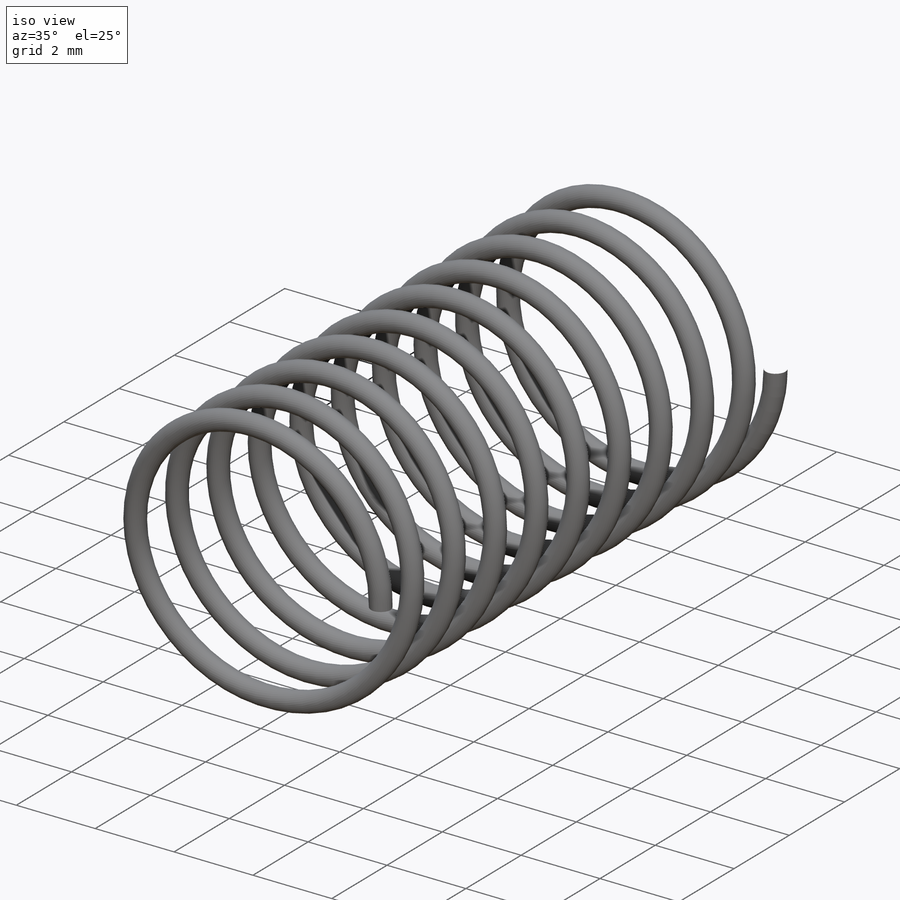
[diagram: iso view]
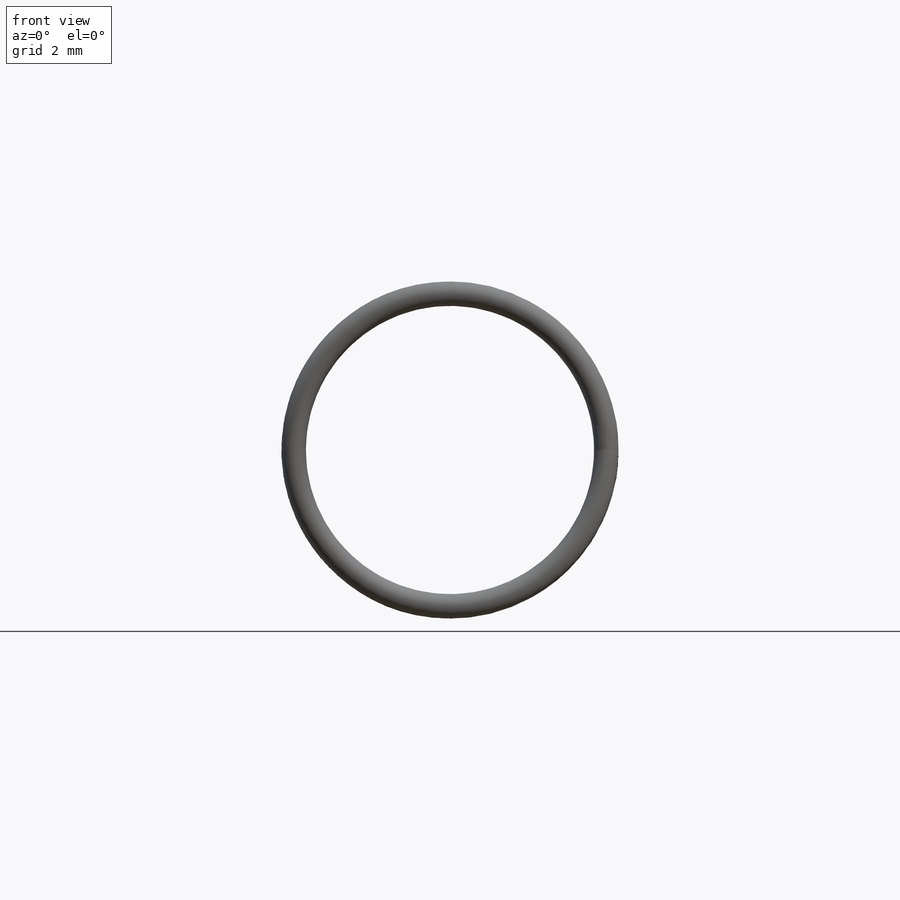
[diagram: front view]
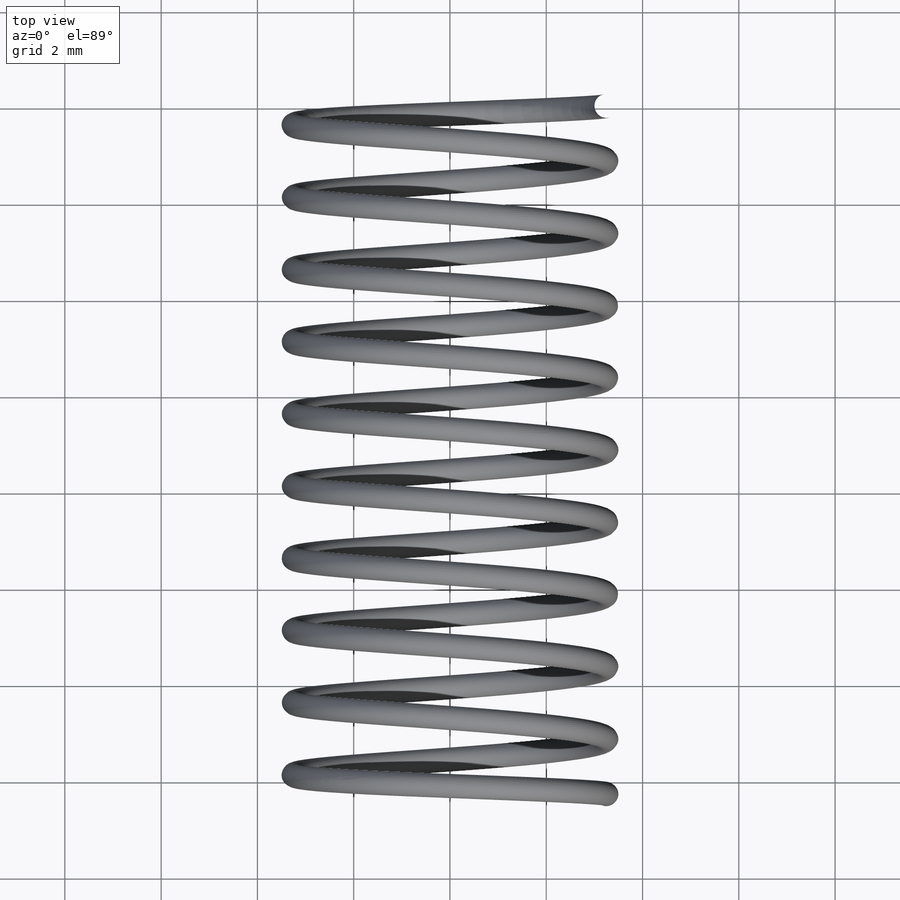
[diagram: top view]
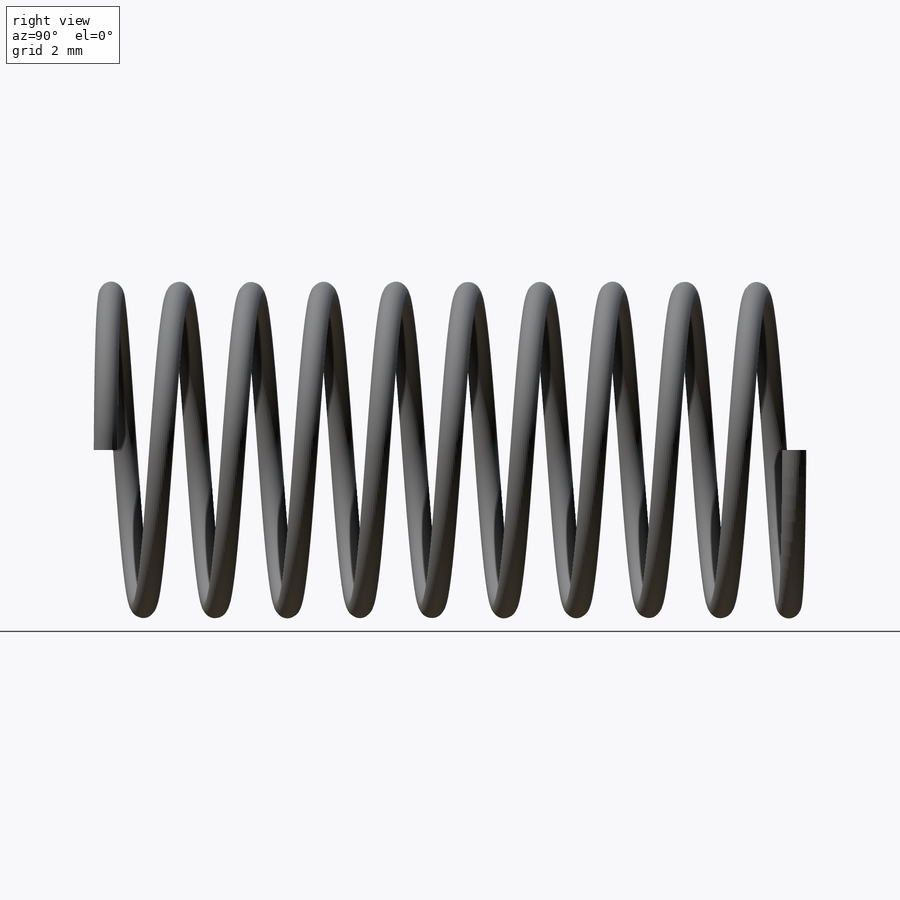
[diagram: right view]
SOLIDWORKS PART (.sldprt)
format: sldprt  version: not decoded by parser v0  size: 2,768,896 bytes
history: native  units: mm
features: sketch x7, sweep x3, material x1, helix x1, plane x1 (+16 scaffold rows collapsed)
feature tree (29):
  scaffold x16  (default folders/planes/origin — collapsed)
  material  "Copper"
  sketch  "Sketch1"  dims[D1=6.0mm D2=0.25mm]
  helix  "Helix/Spiral1"  Pitch=0.275mm
  sketch  "Sketch3"  dims[D1=0.5mm]
  sweep  "Sweep1"
  sketch  "Sketch4"  dims[D2=2.0mm D1=10.0mm]
  sweep  "Sweep2"
  sketch  "Sketch3<2>"
  plane  "Plane1"
  sketch  "Sketch5"  dims[D1=2.0mm D2=10.0mm]
  sketch  "Sketch6"
  sweep  "Sweep3"
  sketch  "Sketch7"
decode coverage: 5 of 11 modeling features carry decoded parameters
note: suppression state not decoded; provenance and decode notes live in map.json
